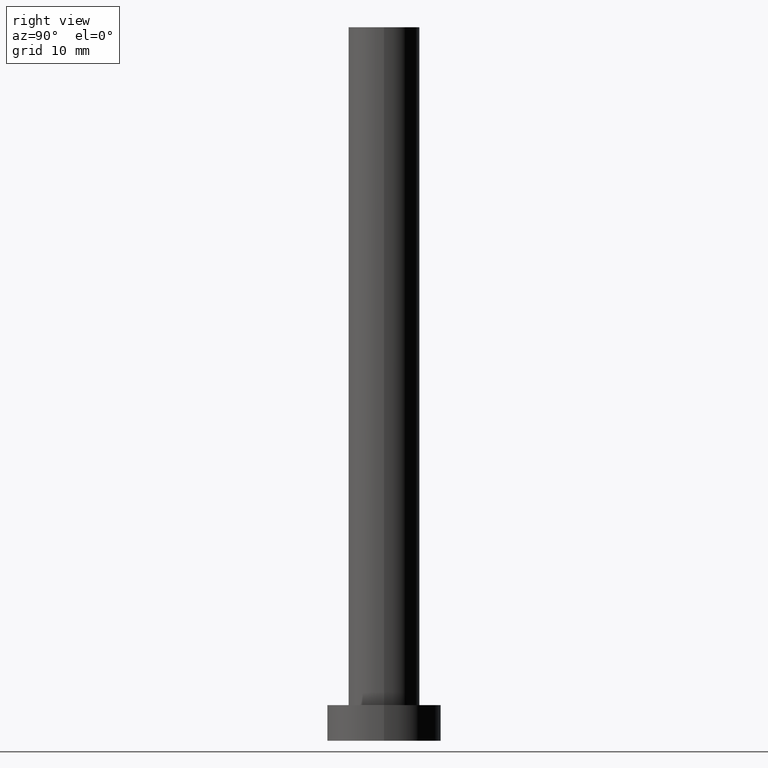
[diagram: clean part render]
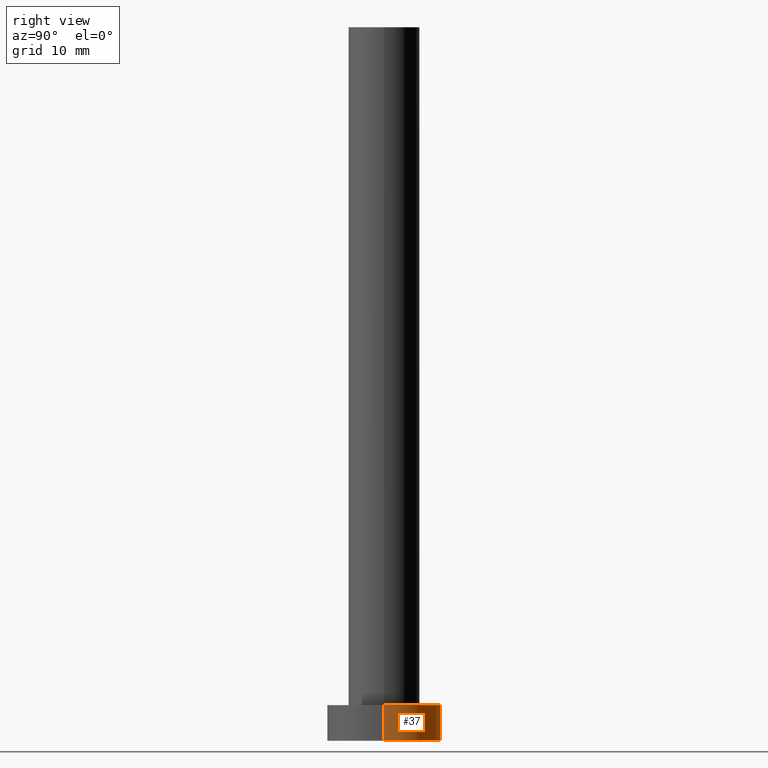
[diagram: same view with one face highlighted and labeled with its STEP entity id]
A machine part, right view. The second image highlights one B-rep face of the part: STEP entity #37.
In plain terms, the highlighted cylindrical surface (partial cylindrical patch) has radius 8 mm, axis along (-0, -0, -1).
Its self-contained STEP definition (entity closure, byte-faithful):
#1 = CARTESIAN_POINT ( 'NONE',  ( 8.000000000000000000, 9.797174393178825657E-16, 5.000000000000000000 ) ) ;
#6 = EDGE_CURVE ( 'NONE', #194, #244, #123, .T. ) ;
#7 = ORIENTED_EDGE ( 'NONE', *, *, #41, .T. ) ;
#13 = CARTESIAN_POINT ( 'NONE',  ( 0.000000000000000000, 0.000000000000000000, 0.000000000000000000 ) ) ;
#30 = CIRCLE ( 'NONE', #67, 8.000000000000000000 ) ;
#37 = ADVANCED_FACE ( 'NONE', ( #214 ), #199, .T. ) ;
#38 = CARTESIAN_POINT ( 'NONE',  ( 8.000000000000000000, 9.797174393178825657E-16, 5.000000000000000000 ) ) ;
#41 = EDGE_CURVE ( 'NONE', #210, #194, #117, .T. ) ;
#47 = ORIENTED_EDGE ( 'NONE', *, *, #192, .F. ) ;
#55 = CARTESIAN_POINT ( 'NONE',  ( 0.000000000000000000, 0.000000000000000000, 5.000000000000000000 ) ) ;
#67 = AXIS2_PLACEMENT_3D ( 'NONE', #120, #76, #119 ) ;
#70 = ORIENTED_EDGE ( 'NONE', *, *, #6, .T. ) ;
#73 = AXIS2_PLACEMENT_3D ( 'NONE', #55, #151, #135 ) ;
#76 = DIRECTION ( 'NONE',  ( 0.000000000000000000, 0.000000000000000000, 1.000000000000000000 ) ) ;
#89 = EDGE_CURVE ( 'NONE', #210, #171, #30, .T. ) ;
#100 = LINE ( 'NONE', #182, #141 ) ;
#103 = CARTESIAN_POINT ( 'NONE',  ( -8.000000000000000000, 0.000000000000000000, 5.000000000000000000 ) ) ;
#115 = VECTOR ( 'NONE', #175, 1000.000000000000000 ) ;
#117 = LINE ( 'NONE', #38, #115 ) ;
#119 = DIRECTION ( 'NONE',  ( 1.000000000000000000, 0.000000000000000000, 0.000000000000000000 ) ) ;
#120 = CARTESIAN_POINT ( 'NONE',  ( 0.000000000000000000, 0.000000000000000000, 5.000000000000000000 ) ) ;
#123 = CIRCLE ( 'NONE', #235, 8.000000000000000000 ) ;
#135 = DIRECTION ( 'NONE',  ( -1.000000000000000000, 0.000000000000000000, 0.000000000000000000 ) ) ;
#138 = DIRECTION ( 'NONE',  ( 1.000000000000000000, 0.000000000000000000, 0.000000000000000000 ) ) ;
#141 = VECTOR ( 'NONE', #159, 1000.000000000000000 ) ;
#151 = DIRECTION ( 'NONE',  ( -0.000000000000000000, -0.000000000000000000, -1.000000000000000000 ) ) ;
#159 = DIRECTION ( 'NONE',  ( -0.000000000000000000, -0.000000000000000000, -1.000000000000000000 ) ) ;
#164 = CARTESIAN_POINT ( 'NONE',  ( 8.000000000000000000, 9.797174393178825657E-16, 0.000000000000000000 ) ) ;
#171 = VERTEX_POINT ( 'NONE', #103 ) ;
#175 = DIRECTION ( 'NONE',  ( -0.000000000000000000, -0.000000000000000000, -1.000000000000000000 ) ) ;
#182 = CARTESIAN_POINT ( 'NONE',  ( -8.000000000000000000, 0.000000000000000000, 5.000000000000000000 ) ) ;
#192 = EDGE_CURVE ( 'NONE', #171, #244, #100, .T. ) ;
#194 = VERTEX_POINT ( 'NONE', #164 ) ;
#199 = CYLINDRICAL_SURFACE ( 'NONE', #73, 8.000000000000000000 ) ;
#207 = EDGE_LOOP ( 'NONE', ( #221, #7, #70, #47 ) ) ;
#210 = VERTEX_POINT ( 'NONE', #1 ) ;
#214 = FACE_OUTER_BOUND ( 'NONE', #207, .T. ) ;
#221 = ORIENTED_EDGE ( 'NONE', *, *, #89, .F. ) ;
#235 = AXIS2_PLACEMENT_3D ( 'NONE', #13, #253, #138 ) ;
#240 = CARTESIAN_POINT ( 'NONE',  ( -8.000000000000000000, 0.000000000000000000, 0.000000000000000000 ) ) ;
#244 = VERTEX_POINT ( 'NONE', #240 ) ;
#253 = DIRECTION ( 'NONE',  ( 0.000000000000000000, 0.000000000000000000, 1.000000000000000000 ) ) ;